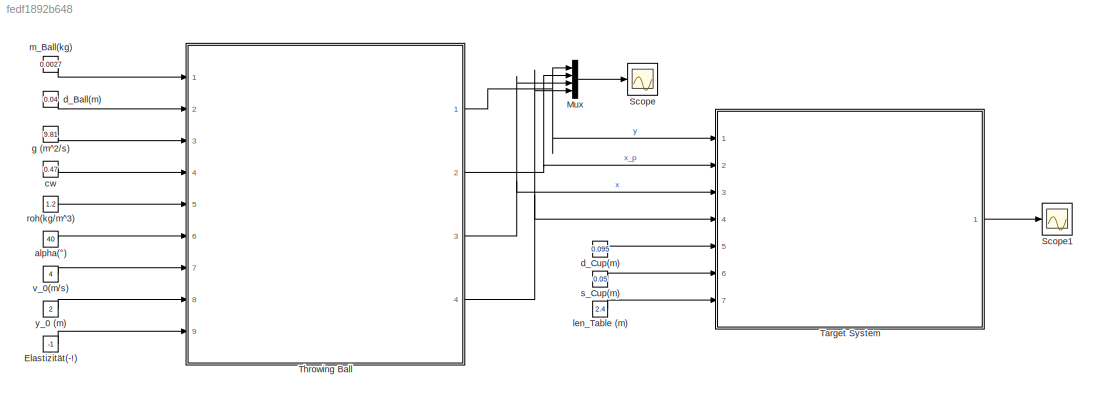
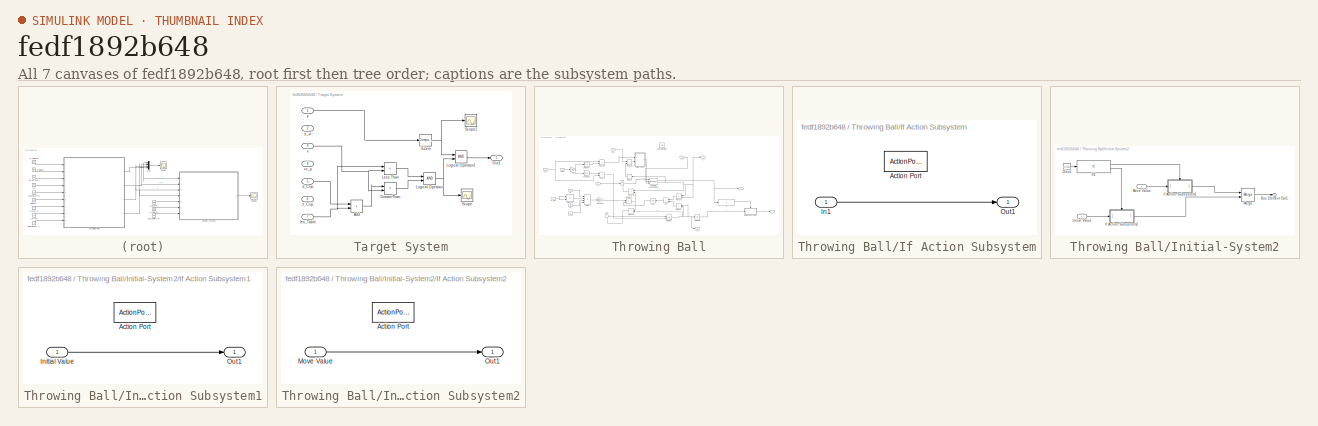
[diagram: thumbnail index - all 7 canvases of the model, root first then tree order]
MODEL slx_fedf1892b648
KIND model
CONFIG AbsTol = auto
CONFIG EnableMultiTasking = off
CONFIG FixedStep = auto
CONFIG MaxStep = auto
CONFIG MinStep = auto
CONFIG RelTol = 1e-3
CONFIG SampleTimeConstraint = Unconstrained
CONFIG SolverName = VariableStepAuto
CONFIG StartTime = 0.0
CONFIG StopTime = 10.0
WORKSPACE source: mxarray member
WORKSPACE c_w = 0.47
WORKSPACE d_Ball = 0.04
WORKSPACE d_cup = 0.095
WORKSPACE g = 9.81
WORKSPACE len = 2.1
WORKSPACE m_Ball = 2.7
WORKSPACE roh = 1.2
WORKSPACE s_cup = 0.05
BLOCK [Constant] Elastizität(-!)
  Value = -1
BLOCK [Mux] Mux
  DisplayOption = bar
  Ports = [4, 1]
BLOCK [Scope] Scope
  Floating = off
  NumInputPorts = 1
  Ports = [1]
  ScopeSpecificationString = Simulink.scopes.TimeScopeBlockCfg('CurrentConfiguration', extmgr.ConfigurationSet(extmgr.Configuration('Core','General UI',true),extmgr.Configuration('Core','Source UI',true),extmgr.Configuration('Sources','WiredSimulink',true,'DataLoggingVariableName','ScopeData4'),extmgr.Configuration('Visuals','Time Domain',true,'SerializedDisplays',{struct('MinYLimReal','-7.46671','MaxYLimReal','9.72284','YLab...<+1419ch>
BLOCK [Scope] Scope1
  Floating = off
  NumInputPorts = 1
  Ports = [1]
  ScopeSpecificationString = Simulink.scopes.TimeScopeBlockCfg('CurrentConfiguration', extmgr.ConfigurationSet(extmgr.Configuration('Core','General UI',true),extmgr.Configuration('Core','Source UI',true),extmgr.Configuration('Sources','WiredSimulink',true,'DataLoggingVariableName','ScopeData1'),extmgr.Configuration('Visuals','Time Domain',true,'SerializedDisplays',{struct('MinYLimReal','-0.125','MaxYLimReal','1.125','YLabelRe...<+1389ch>
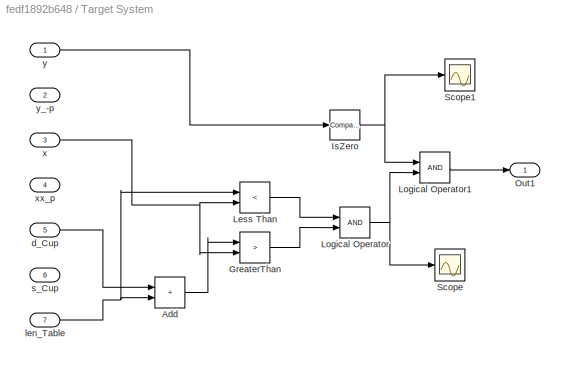
BLOCK [SubSystem] Target System
  Ports = [7, 1]
  RequestExecContextInheritance = off
BLOCK [Sum] Target System/Add
  IconShape = rectangular
  Ports = [2, 1]
BLOCK [RelationalOperator] Target System/GreaterThan
  InputSameDT = off
  Operator = >
  OutDataTypeStr = boolean
  Ports = [2, 1]
  RndMeth = Simplest
BLOCK [Reference] Target System/IsZero  REF=simulink/Logic and Bit
Operations/Compare
To Zero
  Ports = [1, 1]
  SourceBlock = simulink/Logic and Bit\nOperations/Compare\nTo Zero
  SourceProductBaseCode = SL
  SourceType = Compare To Zero
BLOCK [RelationalOperator] Target System/Less Than
  InputSameDT = off
  Operator = <
  OutDataTypeStr = boolean
  Ports = [2, 1]
  RndMeth = Simplest
BLOCK [Logic] Target System/Logical Operator
  AllPortsSameDT = off
  OutDataTypeStr = boolean
  Ports = [2, 1]
BLOCK [Logic] Target System/Logical Operator1
  AllPortsSameDT = off
  OutDataTypeStr = boolean
  Ports = [2, 1]
BLOCK [Outport] Target System/Out1
BLOCK [Scope] Target System/Scope
  Floating = off
  NumInputPorts = 1
  Ports = [1]
  ScopeSpecificationString = Simulink.scopes.TimeScopeBlockCfg('CurrentConfiguration', extmgr.ConfigurationSet(extmgr.Configuration('Core','General UI',true),extmgr.Configuration('Core','Source UI',true),extmgr.Configuration('Sources','WiredSimulink',true),extmgr.Configuration('Visuals','Time Domain',true,'SerializedDisplays',{struct('MinYLimReal','-0.125','MaxYLimReal','1.125','YLabelReal','','MinYLimMag','0.00000','MaxYLimM...<+1359ch>
BLOCK [Scope] Target System/Scope1
  Floating = off
  NumInputPorts = 1
  Ports = [1]
  ScopeSpecificationString = Simulink.scopes.TimeScopeBlockCfg('CurrentConfiguration', extmgr.ConfigurationSet(extmgr.Configuration('Core','General UI',true),extmgr.Configuration('Core','Source UI',true),extmgr.Configuration('Sources','WiredSimulink',true,'DataLoggingVariableName','ScopeData2'),extmgr.Configuration('Visuals','Time Domain',true,'SerializedDisplays',{struct('MinYLimReal','-0.125','MaxYLimReal','1.125','YLabelRe...<+1388ch>
BLOCK [Inport] Target System/d_Cup
  Port = 5
BLOCK [Inport] Target System/len_Table
  Port = 7
BLOCK [Inport] Target System/s_Cup
  Port = 6
BLOCK [Inport] Target System/x
  Port = 3
BLOCK [Inport] Target System/xx_p
  Port = 4
BLOCK [Inport] Target System/y
BLOCK [Inport] Target System/y_-p
  Port = 2
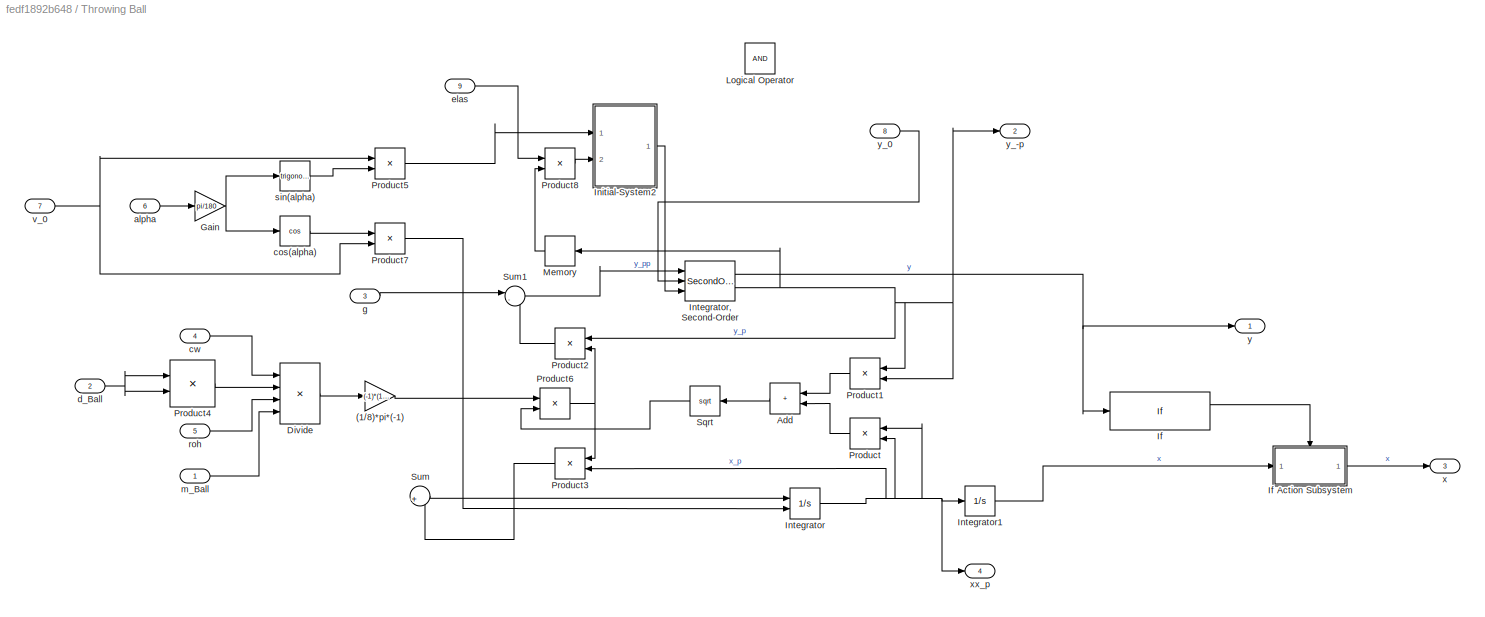
BLOCK [SubSystem] Throwing Ball
  Ports = [9, 4]
  RequestExecContextInheritance = off
BLOCK [Gain] Throwing Ball/(1//8)*pi*(-1)
  Gain = (-1)*(1/8)*pi
BLOCK [Sum] Throwing Ball/Add
  IconShape = rectangular
  Ports = [2, 1]
BLOCK [Product] Throwing Ball/Divide
  Inputs = ***/
  Ports = [4, 1]
BLOCK [Gain] Throwing Ball/Gain
  Gain = pi/180
BLOCK [If] Throwing Ball/If
  Ports = [1, 2]
BLOCK [SubSystem] Throwing Ball/If Action Subsystem
  Ports = [1, 1, 0, 0, 0, 0, 0, 1]
  RequestExecContextInheritance = off
  TreatAsAtomicUnit = on
BLOCK [ActionPort] Throwing Ball/If Action Subsystem/Action Port
  ActionPortLabel = if(u1 > 0)
BLOCK [Inport] Throwing Ball/If Action Subsystem/In1
BLOCK [Outport] Throwing Ball/If Action Subsystem/Out1
BLOCK [SubSystem] Throwing Ball/Initial-System2
  Ports = [2, 1]
  RequestExecContextInheritance = off
BLOCK [Outport] Throwing Ball/Initial-System2/Bus Element Out1
BLOCK [Clock] Throwing Ball/Initial-System2/Clock
  Decimation = 1
BLOCK [SubSystem] Throwing Ball/Initial-System2/If Action Subsystem1
  Ports = [1, 1, 0, 0, 0, 0, 0, 1]
  RequestExecContextInheritance = off
  TreatAsAtomicUnit = on
BLOCK [ActionPort] Throwing Ball/Initial-System2/If Action Subsystem1/Action Port
  ActionPortLabel = if(u1 > 0)
BLOCK [Inport] Throwing Ball/Initial-System2/If Action Subsystem1/Initial Value
BLOCK [Outport] Throwing Ball/Initial-System2/If Action Subsystem1/Out1
BLOCK [SubSystem] Throwing Ball/Initial-System2/If Action Subsystem2
  Ports = [1, 1, 0, 0, 0, 0, 0, 1]
  RequestExecContextInheritance = off
  TreatAsAtomicUnit = on
BLOCK [ActionPort] Throwing Ball/Initial-System2/If Action Subsystem2/Action Port
  ActionPortLabel = else
BLOCK [Inport] Throwing Ball/Initial-System2/If Action Subsystem2/Move Value
BLOCK [Outport] Throwing Ball/Initial-System2/If Action Subsystem2/Out1
BLOCK [If] Throwing Ball/Initial-System2/If1
  Ports = [1, 2]
BLOCK [Inport] Throwing Ball/Initial-System2/Initial Value
BLOCK [Merge] Throwing Ball/Initial-System2/Merge
  Ports = [2, 1]
BLOCK [Inport] Throwing Ball/Initial-System2/Move Value
  Port = 2
BLOCK [Integrator] Throwing Ball/Integrator
  InitialCondition = 2
  InitialConditionSource = external
  Ports = [2, 1]
BLOCK [SecondOrderIntegrator] Throwing Ball/Integrator, Second-Order
  ICSourceDXDT = external
  ICSourceX = external
  LimitX = on
  LowerLimitX = 0.0
  Ports = [3, 2]
  ReinitDXDTwhenXreachesSaturation = on
BLOCK [Integrator] Throwing Ball/Integrator1
  LimitOutput = on
  LowerSaturationLimit = 0
  Ports = [1, 1]
BLOCK [Logic] Throwing Ball/Logical Operator
  AllPortsSameDT = off
  OutDataTypeStr = boolean
  Ports = [2, 1]
BLOCK [Memory] Throwing Ball/Memory
BLOCK [Product] Throwing Ball/Product
  Ports = [2, 1]
BLOCK [Product] Throwing Ball/Product1
  Ports = [2, 1]
BLOCK [Product] Throwing Ball/Product2
  Ports = [2, 1]
BLOCK [Product] Throwing Ball/Product3
  Ports = [2, 1]
BLOCK [Product] Throwing Ball/Product4
  Ports = [2, 1]
BLOCK [Product] Throwing Ball/Product5
  Ports = [2, 1]
BLOCK [Product] Throwing Ball/Product6
  Ports = [2, 1]
BLOCK [Product] Throwing Ball/Product7
  Ports = [2, 1]
BLOCK [Product] Throwing Ball/Product8
  Ports = [2, 1]
BLOCK [Sqrt] Throwing Ball/Sqrt
BLOCK [Sum] Throwing Ball/Sum
  Inputs = |+
  NameLocation = top
  Ports = [1, 1]
BLOCK [Sum] Throwing Ball/Sum1
  Inputs = |-+
  Ports = [2, 1]
BLOCK [Inport] Throwing Ball/alpha
  Port = 6
BLOCK [Trigonometry] Throwing Ball/cos(alpha)
  Operator = cos
  Ports = [1, 1]
BLOCK [Inport] Throwing Ball/cw
  Port = 4
BLOCK [Inport] Throwing Ball/d_Ball
  Port = 2
BLOCK [Inport] Throwing Ball/elas
  Port = 9
BLOCK [Inport] Throwing Ball/g
  Port = 3
BLOCK [Inport] Throwing Ball/m_Ball
BLOCK [Inport] Throwing Ball/roh
  Port = 5
BLOCK [Trigonometry] Throwing Ball/sin(alpha)
  OutputSignalType = real
  Ports = [1, 1]
BLOCK [Inport] Throwing Ball/v_0
  Port = 7
BLOCK [Outport] Throwing Ball/x
  Port = 3
BLOCK [Outport] Throwing Ball/xx_p
  Port = 4
BLOCK [Outport] Throwing Ball/y
BLOCK [Outport] Throwing Ball/y_-p
  Port = 2
BLOCK [Inport] Throwing Ball/y_0
  Port = 8
BLOCK [Constant] alpha(°)
  Value = 40
BLOCK [Constant] cw
  Value = 0.47
BLOCK [Constant] d_Ball(m)
  Value = 0.04
BLOCK [Constant] d_Cup(m)
  Value = 0.095
BLOCK [Constant] g (m^2//s)
  Value = 9.81
BLOCK [Constant] len_Table (m)
  Value = 2.4
BLOCK [Constant] m_Ball(kg)
  Value = 0.0027
BLOCK [Constant] roh(kg//m^3)
  Value = 1.2
BLOCK [Constant] s_Cup(m)
  Value = 0.05
BLOCK [Constant] v_0(m//s)
  Value = 4
BLOCK [Constant] y_0 (m)
  Value = 2
LINE Elastizität(-!):1 -> Throwing Ball:9
LINE Mux:1 -> Scope:1
LINE Target System/Add:1 -> Target System/GreaterThan:1
LINE Target System/GreaterThan:1 -> Target System/Logical Operator:2
NET Target System/IsZero:1 -> Target System/Logical Operator1:1, Target System/Scope1:1
LINE Target System/Less Than:1 -> Target System/Logical Operator:1
LINE Target System/Logical Operator1:1 -> Target System/Out1:1
NET Target System/Logical Operator:1 -> Target System/Logical Operator1:2, Target System/Scope:1
LINE Target System/d_Cup:1 -> Target System/Add:1
NET Target System/len_Table:1 -> Target System/Add:2, Target System/Less Than:1
NET Target System/x:1 -> Target System/GreaterThan:2, Target System/Less Than:2
LINE Target System/y:1 -> Target System/IsZero:1
LINE Target System:1 -> Scope1:1
LINE Throwing Ball/(1//8)*pi*(-1):1 -> Throwing Ball/Product6:1
LINE Throwing Ball/Add:1 -> Throwing Ball/Sqrt:1
LINE Throwing Ball/Divide:1 -> Throwing Ball/(1//8)*pi*(-1):1
NET Throwing Ball/Gain:1 -> Throwing Ball/cos(alpha):1, Throwing Ball/sin(alpha):1
LINE Throwing Ball/If Action Subsystem/In1:1 -> Throwing Ball/If Action Subsystem/Out1:1
LINE Throwing Ball/If Action Subsystem:1 -> Throwing Ball/x:1
LINE Throwing Ball/If:1 -> Throwing Ball/If Action Subsystem:ifaction
LINE Throwing Ball/Initial-System2/Clock:1 -> Throwing Ball/Initial-System2/If1:1
LINE Throwing Ball/Initial-System2/If Action Subsystem1/Initial Value:1 -> Throwing Ball/Initial-System2/If Action Subsystem1/Out1:1
LINE Throwing Ball/Initial-System2/If Action Subsystem1:1 -> Throwing Ball/Initial-System2/Merge:1
LINE Throwing Ball/Initial-System2/If Action Subsystem2/Move Value:1 -> Throwing Ball/Initial-System2/If Action Subsystem2/Out1:1
LINE Throwing Ball/Initial-System2/If Action Subsystem2:1 -> Throwing Ball/Initial-System2/Merge:2
LINE Throwing Ball/Initial-System2/If1:1 -> Throwing Ball/Initial-System2/If Action Subsystem1:ifaction
LINE Throwing Ball/Initial-System2/If1:2 -> Throwing Ball/Initial-System2/If Action Subsystem2:ifaction
LINE Throwing Ball/Initial-System2/Initial Value:1 -> Throwing Ball/Initial-System2/If Action Subsystem2:1
LINE Throwing Ball/Initial-System2/Merge:1 -> Throwing Ball/Initial-System2/Bus Element Out1:1
LINE Throwing Ball/Initial-System2/Move Value:1 -> Throwing Ball/Initial-System2/If Action Subsystem1:1
LINE Throwing Ball/Initial-System2:1 -> Throwing Ball/Integrator, Second-Order:3
NET Throwing Ball/Integrator, Second-Order:1 -> Throwing Ball/If:1, Throwing Ball/y:1
NET Throwing Ball/Integrator, Second-Order:2 -> Throwing Ball/Memory:1, Throwing Ball/Product1:1, Throwing Ball/Product1:2, Throwing Ball/Product2:1, Throwing Ball/y_-p:1
LINE Throwing Ball/Integrator1:1 -> Throwing Ball/If Action Subsystem:1
NET Throwing Ball/Integrator:1 -> Throwing Ball/Integrator1:1, Throwing Ball/Product3:2, Throwing Ball/Product:1, Throwing Ball/Product:2, Throwing Ball/xx_p:1
LINE Throwing Ball/Memory:1 -> Throwing Ball/Product8:2
LINE Throwing Ball/Product1:1 -> Throwing Ball/Add:1
LINE Throwing Ball/Product2:1 -> Throwing Ball/Sum1:2
LINE Throwing Ball/Product3:1 -> Throwing Ball/Sum:1
LINE Throwing Ball/Product4:1 -> Throwing Ball/Divide:2
LINE Throwing Ball/Product5:1 -> Throwing Ball/Initial-System2:1
NET Throwing Ball/Product6:1 -> Throwing Ball/Product2:2, Throwing Ball/Product3:1
LINE Throwing Ball/Product7:1 -> Throwing Ball/Integrator:2
LINE Throwing Ball/Product8:1 -> Throwing Ball/Initial-System2:2
LINE Throwing Ball/Product:1 -> Throwing Ball/Add:2
LINE Throwing Ball/Sqrt:1 -> Throwing Ball/Product6:2
LINE Throwing Ball/Sum1:1 -> Throwing Ball/Integrator, Second-Order:1
LINE Throwing Ball/Sum:1 -> Throwing Ball/Integrator:1
LINE Throwing Ball/alpha:1 -> Throwing Ball/Gain:1
LINE Throwing Ball/cos(alpha):1 -> Throwing Ball/Product7:1
LINE Throwing Ball/cw:1 -> Throwing Ball/Divide:1
NET Throwing Ball/d_Ball:1 -> Throwing Ball/Product4:1, Throwing Ball/Product4:2
LINE Throwing Ball/elas:1 -> Throwing Ball/Product8:1
LINE Throwing Ball/g:1 -> Throwing Ball/Sum1:1
LINE Throwing Ball/m_Ball:1 -> Throwing Ball/Divide:4
LINE Throwing Ball/roh:1 -> Throwing Ball/Divide:3
LINE Throwing Ball/sin(alpha):1 -> Throwing Ball/Product5:2
NET Throwing Ball/v_0:1 -> Throwing Ball/Product5:1, Throwing Ball/Product7:2
LINE Throwing Ball/y_0:1 -> Throwing Ball/Integrator, Second-Order:2
NET Throwing Ball:1 -> Mux:1, Target System:1
NET Throwing Ball:2 -> Mux:2, Target System:2
NET Throwing Ball:3 -> Mux:3, Target System:3
NET Throwing Ball:4 -> Mux:4, Target System:4
LINE alpha(°):1 -> Throwing Ball:6
LINE cw:1 -> Throwing Ball:4
LINE d_Ball(m):1 -> Throwing Ball:2
LINE d_Cup(m):1 -> Target System:5
LINE g (m^2//s):1 -> Throwing Ball:3
LINE len_Table (m):1 -> Target System:7
LINE m_Ball(kg):1 -> Throwing Ball:1
LINE roh(kg//m^3):1 -> Throwing Ball:5
LINE s_Cup(m):1 -> Target System:6
LINE v_0(m//s):1 -> Throwing Ball:7
LINE y_0 (m):1 -> Throwing Ball:8
note: NET lines group one-source signal fan-out (src -> all destinations, sorted); 1:1 wires keep LINE
